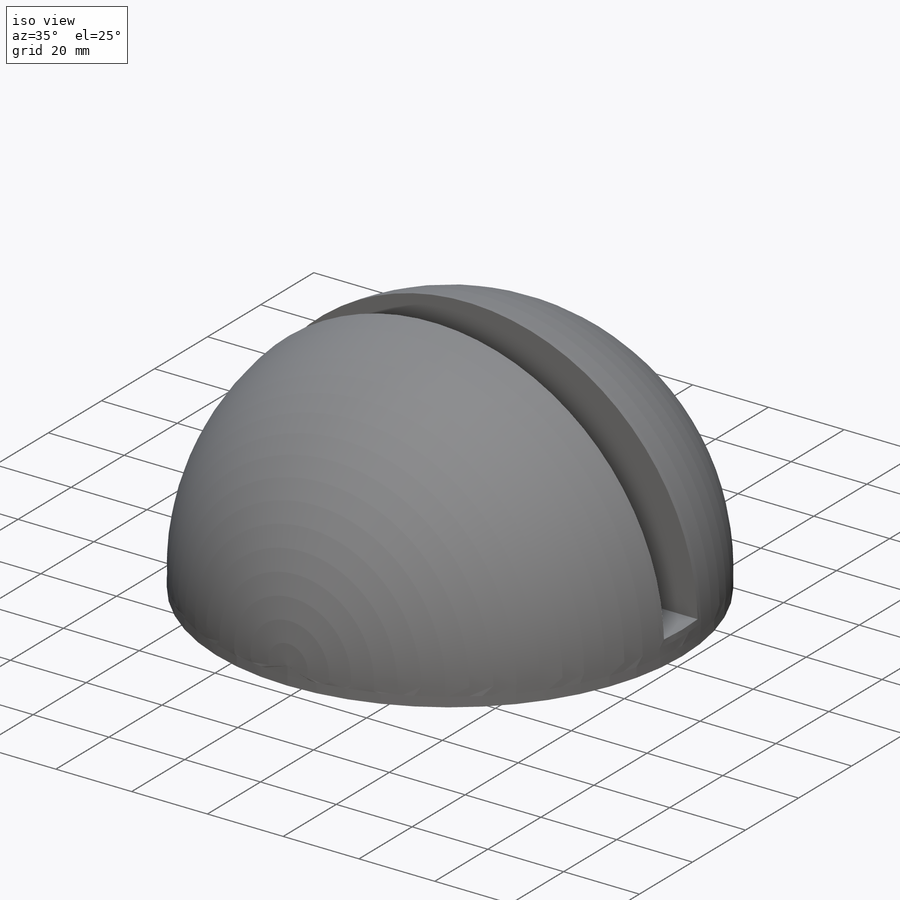
[diagram: iso view]
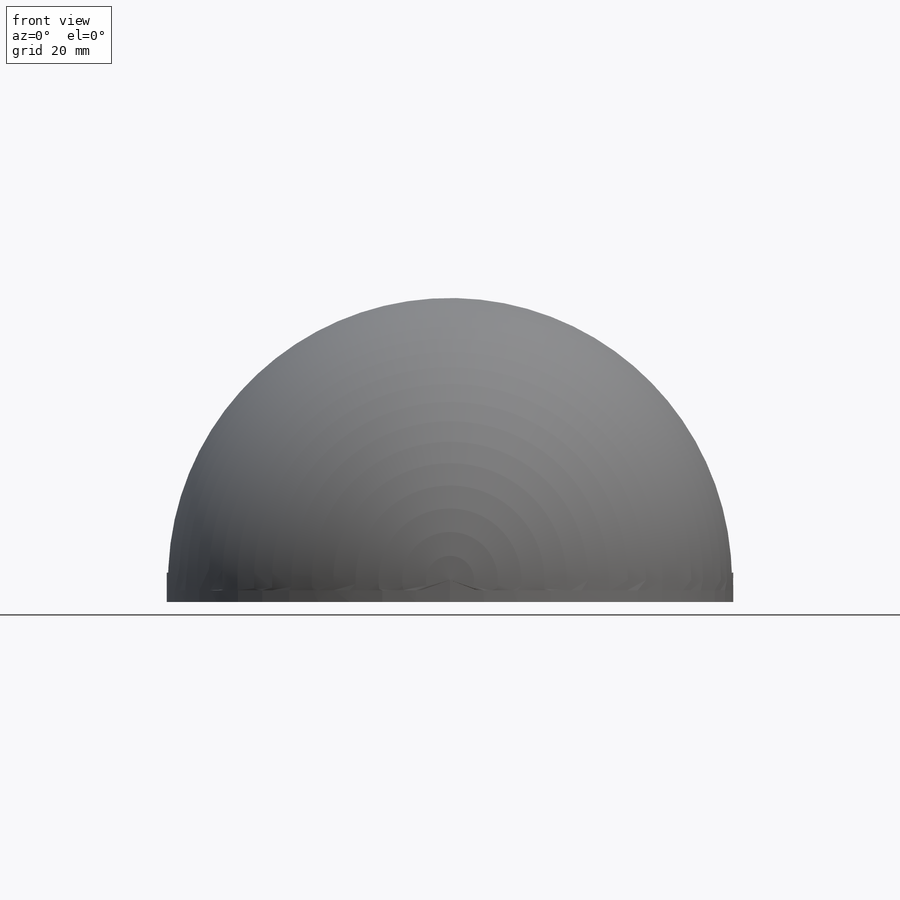
[diagram: front view]
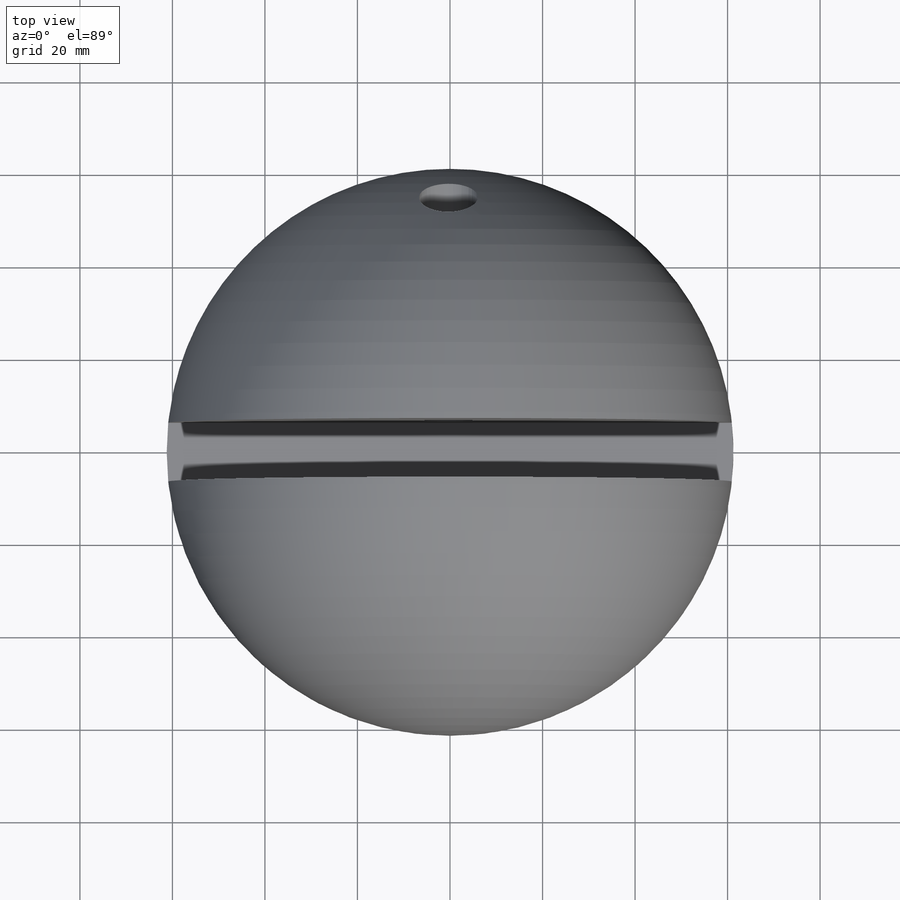
[diagram: top view]
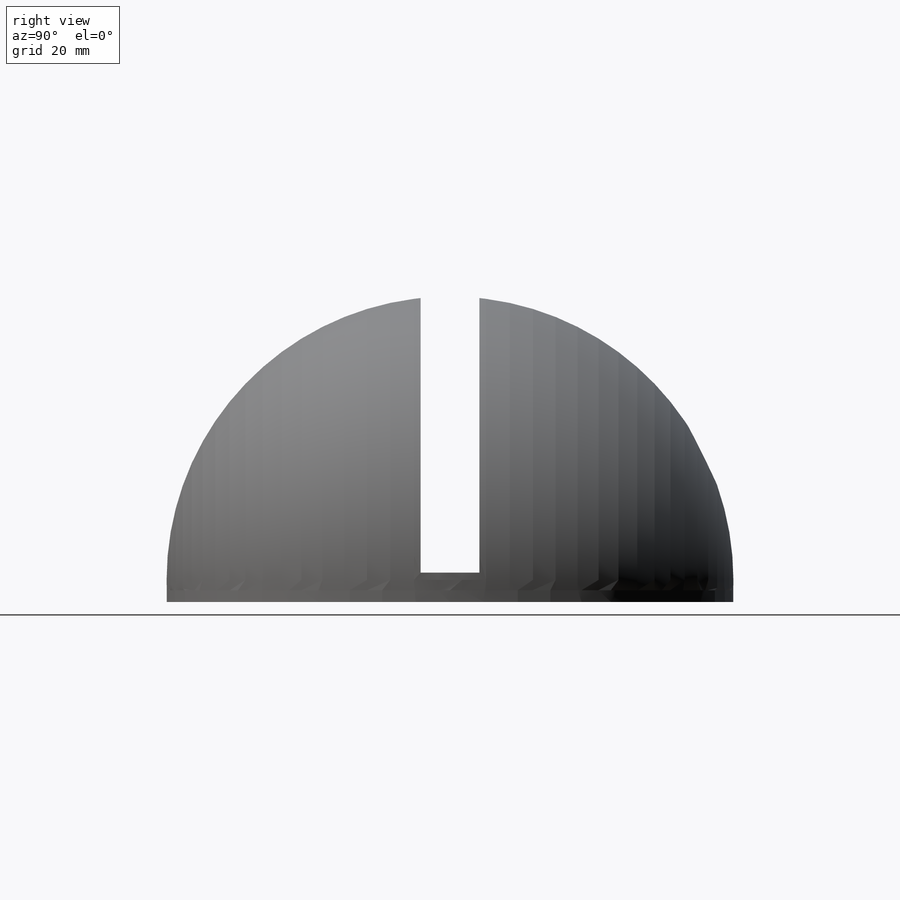
[diagram: right view]
SOLIDWORKS PART (.sldprt)
format: sldprt  version: not decoded by parser v0  size: 109,568 bytes
history: native  units: mm
features: sketch x4, cut_extrude x2, material x1, extrude x1, dome x1 (+14 scaffold rows collapsed)
feature tree (23):
  scaffold x14  (default folders/planes/origin — collapsed)
  material  "Material <not specified>"
  sketch  "Sketch1"
  extrude  "Extrude1"  Depth=2.54mm
  dome  "Dome1"
  sketch  "3DSketch1"  dims[D2=~13.336675mm D3=12.7mm]
  sketch  "Sketch2"  dims[D1=12.7mm]
  cut_extrude  "Extrude2"  Depth=69.85mm
  sketch  "3DSketch2"  dims[D1=~13.161498mm D2=25.4mm]
  cut_extrude  "Extrude3"  Depth=69.85mm
decode coverage: 6 of 8 modeling features carry decoded parameters
note: ~ marks probable driven/reference dimensions
note: suppression state not decoded; provenance and decode notes live in map.json
